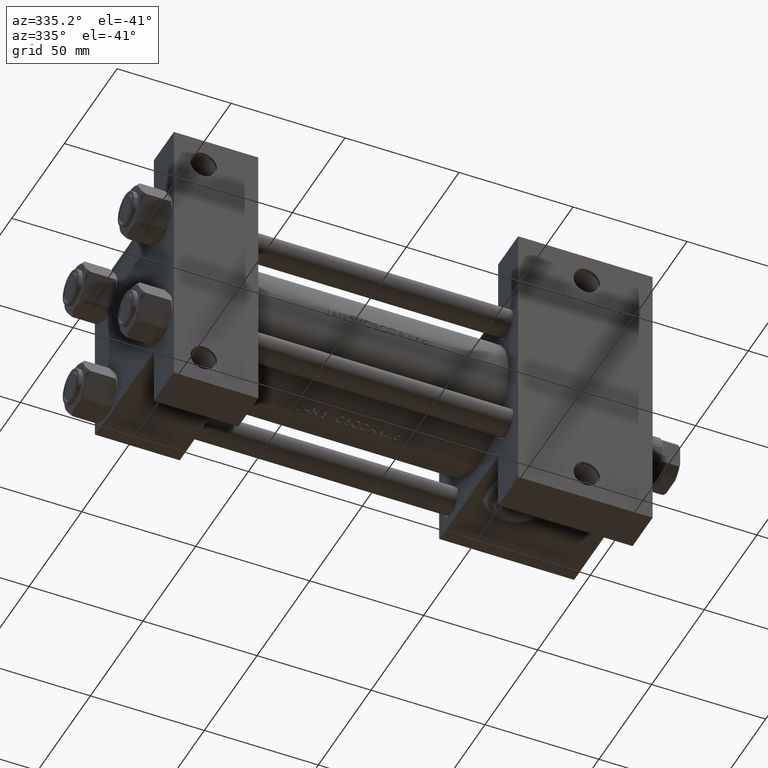
[diagram: clean part render]
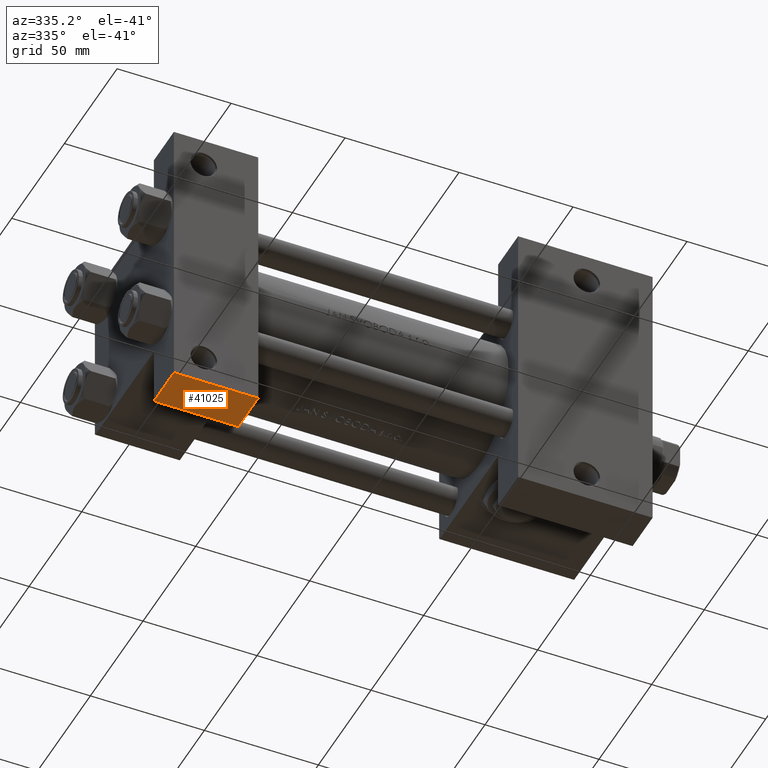
[diagram: same view with one face highlighted and labeled with its STEP entity id]
A machine part, auxiliary view. The second image highlights one B-rep face of the part: STEP entity #41025.
In plain terms, the highlighted planar face has unit normal (0, -0, -1).
Its self-contained STEP definition (entity closure, byte-faithful):
#670 = VECTOR ( 'NONE', #8181, 1000.000000000000000 ) ;
#930 = EDGE_CURVE ( 'NONE', #39373, #6454, #27267, .T. ) ;
#6454 = VERTEX_POINT ( 'NONE', #6463 ) ;
#6463 = CARTESIAN_POINT ( 'NONE',  ( 1.595073532467135441E-14, 63.50000000000000000, -37.50000000000002132 ) ) ;
#6756 = CARTESIAN_POINT ( 'NONE',  ( 1.595073532467135441E-14, 63.50000000000000000, -18.50000000000000355 ) ) ;
#7024 = VECTOR ( 'NONE', #30263, 1000.000000000000000 ) ;
#7263 = EDGE_CURVE ( 'NONE', #6454, #9143, #22781, .T. ) ;
#7443 = AXIS2_PLACEMENT_3D ( 'NONE', #17821, #43995, #47476 ) ;
#7806 = DIRECTION ( 'NONE',  ( 1.000000000000000000, 0.000000000000000000, 0.000000000000000000 ) ) ;
#8181 = DIRECTION ( 'NONE',  ( 0.000000000000000000, -1.734723475976806848E-16, -1.000000000000000000 ) ) ;
#9143 = VERTEX_POINT ( 'NONE', #38610 ) ;
#10006 = LINE ( 'NONE', #6756, #47053 ) ;
#11864 = PLANE ( 'NONE',  #7443 ) ;
#12517 = CARTESIAN_POINT ( 'NONE',  ( 1.595073532467135441E-14, 63.50000000000000000, -18.50000000000000355 ) ) ;
#15662 = LINE ( 'NONE', #42319, #670 ) ;
#16003 = VERTEX_POINT ( 'NONE', #18875 ) ;
#16377 = ORIENTED_EDGE ( 'NONE', *, *, #23952, .T. ) ;
#17821 = CARTESIAN_POINT ( 'NONE',  ( 1.595073532467135441E-14, 63.50000000000001421, 26.72167621838005047 ) ) ;
#18785 = CARTESIAN_POINT ( 'NONE',  ( 1.595073532467135441E-14, 63.50000000000001421, 26.72167621838005047 ) ) ;
#18875 = CARTESIAN_POINT ( 'NONE',  ( 37.00000000000001421, 63.50000000000000000, -18.50000000000000355 ) ) ;
#21259 = DIRECTION ( 'NONE',  ( -1.000000000000000000, 0.000000000000000000, 0.000000000000000000 ) ) ;
#22781 = LINE ( 'NONE', #26770, #28760 ) ;
#23668 = EDGE_LOOP ( 'NONE', ( #37637, #16377, #31579, #38375 ) ) ;
#23952 = EDGE_CURVE ( 'NONE', #16003, #9143, #15662, .T. ) ;
#26770 = CARTESIAN_POINT ( 'NONE',  ( 1.595073532467135441E-14, 63.50000000000000000, -37.50000000000002132 ) ) ;
#27267 = LINE ( 'NONE', #18785, #7024 ) ;
#28760 = VECTOR ( 'NONE', #7806, 1000.000000000000000 ) ;
#30263 = DIRECTION ( 'NONE',  ( 0.000000000000000000, -1.734723475976806848E-16, -1.000000000000000000 ) ) ;
#30833 = FACE_OUTER_BOUND ( 'NONE', #23668, .T. ) ;
#31579 = ORIENTED_EDGE ( 'NONE', *, *, #7263, .F. ) ;
#34589 = EDGE_CURVE ( 'NONE', #16003, #39373, #10006, .T. ) ;
#37637 = ORIENTED_EDGE ( 'NONE', *, *, #34589, .F. ) ;
#38375 = ORIENTED_EDGE ( 'NONE', *, *, #930, .F. ) ;
#38610 = CARTESIAN_POINT ( 'NONE',  ( 37.00000000000001421, 63.50000000000000000, -37.50000000000002132 ) ) ;
#39373 = VERTEX_POINT ( 'NONE', #12517 ) ;
#41025 = ADVANCED_FACE ( 'NONE', ( #30833 ), #11864, .T. ) ;
#42319 = CARTESIAN_POINT ( 'NONE',  ( 37.00000000000001421, 63.50000000000001421, 26.72167621838005047 ) ) ;
#43995 = DIRECTION ( 'NONE',  ( 0.000000000000000000, 1.000000000000000000, -1.734723475976806848E-16 ) ) ;
#47053 = VECTOR ( 'NONE', #21259, 1000.000000000000000 ) ;
#47476 = DIRECTION ( 'NONE',  ( 0.000000000000000000, 1.734723475976806848E-16, 1.000000000000000000 ) ) ;